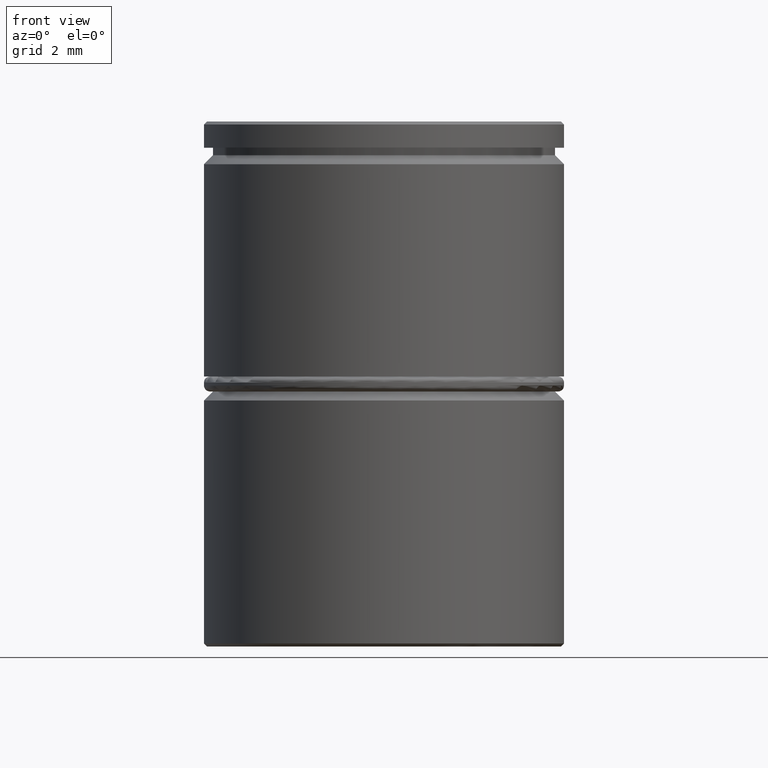
[diagram: clean part render]
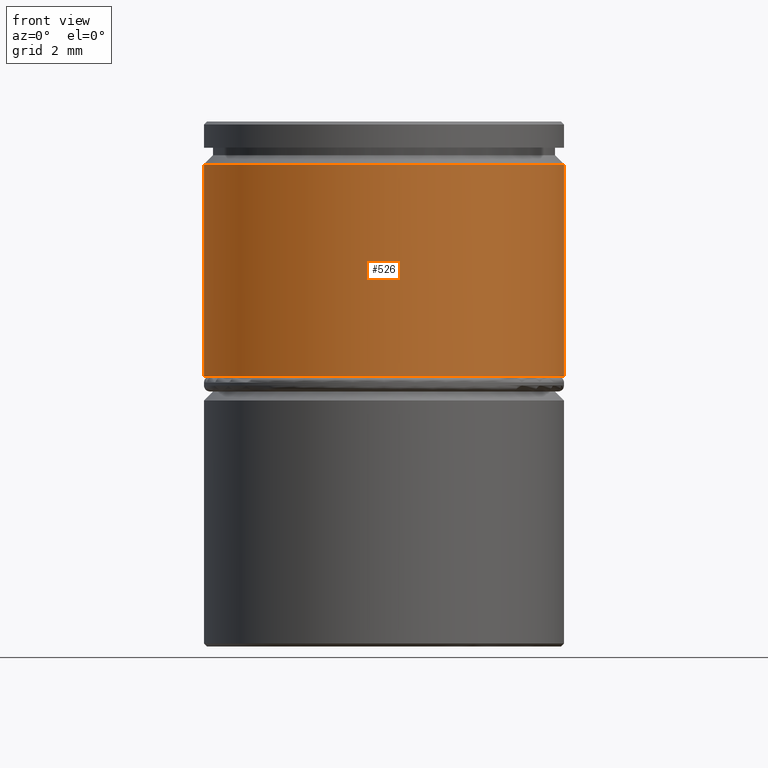
[diagram: same view with one face highlighted and labeled with its STEP entity id]
A machine part, front view. The second image highlights one B-rep face of the part: STEP entity #526.
In plain terms, the highlighted cylindrical surface (partial cylindrical patch) has radius 6 mm, axis along (-0, -0, 1).
Its self-contained STEP definition (entity closure, byte-faithful):
#16 = CARTESIAN_POINT ( 'NONE',  ( -6.000000000000000000, 7.347880794884119736E-16, -1.424999999999999156 ) ) ;
#48 = ORIENTED_EDGE ( 'NONE', *, *, #221, .T. ) ;
#113 = DIRECTION ( 'NONE',  ( 0.000000000000000000, 0.000000000000000000, -1.000000000000000000 ) ) ;
#156 = CARTESIAN_POINT ( 'NONE',  ( 0.000000000000000000, 0.000000000000000000, 0.000000000000000000 ) ) ;
#178 = VERTEX_POINT ( 'NONE', #648 ) ;
#182 = LINE ( 'NONE', #243, #998 ) ;
#188 = EDGE_CURVE ( 'NONE', #623, #675, #182, .T. ) ;
#189 = DIRECTION ( 'NONE',  ( 1.000000000000000000, 0.000000000000000000, 0.000000000000000000 ) ) ;
#206 = DIRECTION ( 'NONE',  ( -0.000000000000000000, -0.000000000000000000, 1.000000000000000000 ) ) ;
#221 = EDGE_CURVE ( 'NONE', #178, #903, #577, .T. ) ;
#243 = CARTESIAN_POINT ( 'NONE',  ( -6.000000000000000000, 7.347880794884119736E-16, 0.000000000000000000 ) ) ;
#277 = CARTESIAN_POINT ( 'NONE',  ( 6.000000000000000000, 0.000000000000000000, -1.424999999999999156 ) ) ;
#281 = AXIS2_PLACEMENT_3D ( 'NONE', #843, #206, #839 ) ;
#300 = CIRCLE ( 'NONE', #379, 6.000000000000000000 ) ;
#323 = ORIENTED_EDGE ( 'NONE', *, *, #188, .F. ) ;
#377 = CYLINDRICAL_SURFACE ( 'NONE', #931, 6.000000000000000000 ) ;
#379 = AXIS2_PLACEMENT_3D ( 'NONE', #594, #113, #189 ) ;
#416 = EDGE_CURVE ( 'NONE', #903, #675, #300, .T. ) ;
#471 = CIRCLE ( 'NONE', #281, 6.000000000000000000 ) ;
#526 = ADVANCED_FACE ( 'NONE', ( #621 ), #377, .T. ) ;
#577 = LINE ( 'NONE', #885, #872 ) ;
#581 = DIRECTION ( 'NONE',  ( -0.000000000000000000, -0.000000000000000000, 1.000000000000000000 ) ) ;
#594 = CARTESIAN_POINT ( 'NONE',  ( 0.000000000000000000, 0.000000000000000000, -1.424999999999999156 ) ) ;
#621 = FACE_OUTER_BOUND ( 'NONE', #685, .T. ) ;
#623 = VERTEX_POINT ( 'NONE', #1029 ) ;
#648 = CARTESIAN_POINT ( 'NONE',  ( 6.000000000000000000, 0.000000000000000000, -8.500000000000000000 ) ) ;
#652 = DIRECTION ( 'NONE',  ( -0.000000000000000000, -0.000000000000000000, 1.000000000000000000 ) ) ;
#675 = VERTEX_POINT ( 'NONE', #16 ) ;
#685 = EDGE_LOOP ( 'NONE', ( #323, #1005, #48, #909 ) ) ;
#839 = DIRECTION ( 'NONE',  ( 1.000000000000000000, 0.000000000000000000, 0.000000000000000000 ) ) ;
#843 = CARTESIAN_POINT ( 'NONE',  ( 0.000000000000000000, 0.000000000000000000, -8.500000000000000000 ) ) ;
#872 = VECTOR ( 'NONE', #652, 1000.000000000000000 ) ;
#878 = EDGE_CURVE ( 'NONE', #623, #178, #471, .T. ) ;
#885 = CARTESIAN_POINT ( 'NONE',  ( 6.000000000000000000, 0.000000000000000000, 0.000000000000000000 ) ) ;
#903 = VERTEX_POINT ( 'NONE', #277 ) ;
#909 = ORIENTED_EDGE ( 'NONE', *, *, #416, .T. ) ;
#931 = AXIS2_PLACEMENT_3D ( 'NONE', #156, #1019, #938 ) ;
#938 = DIRECTION ( 'NONE',  ( 1.000000000000000000, 0.000000000000000000, 0.000000000000000000 ) ) ;
#998 = VECTOR ( 'NONE', #581, 1000.000000000000000 ) ;
#1005 = ORIENTED_EDGE ( 'NONE', *, *, #878, .T. ) ;
#1019 = DIRECTION ( 'NONE',  ( -0.000000000000000000, -0.000000000000000000, 1.000000000000000000 ) ) ;
#1029 = CARTESIAN_POINT ( 'NONE',  ( -6.000000000000000000, 7.347880794884119736E-16, -8.500000000000000000 ) ) ;